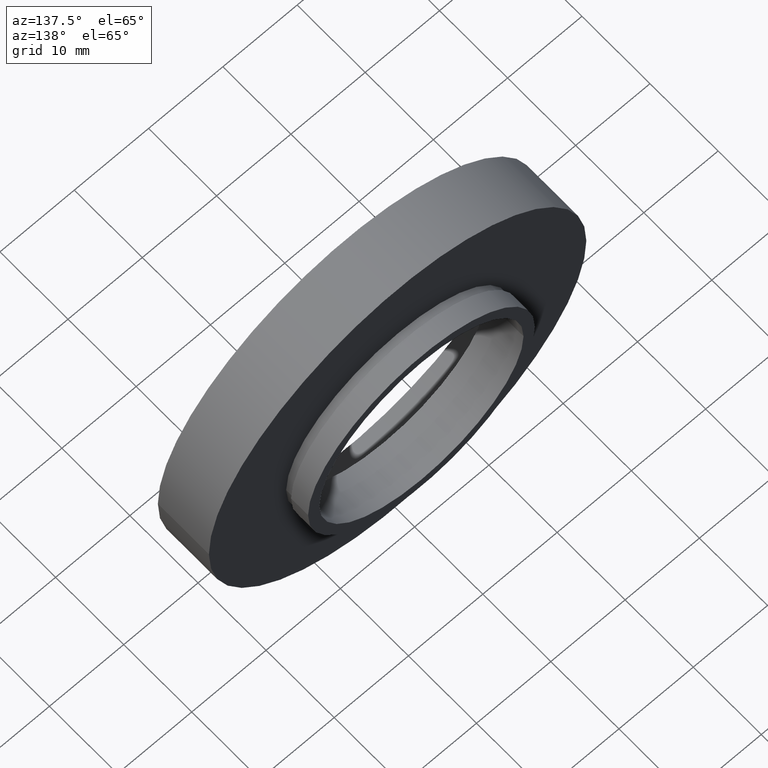
[diagram: clean part render]
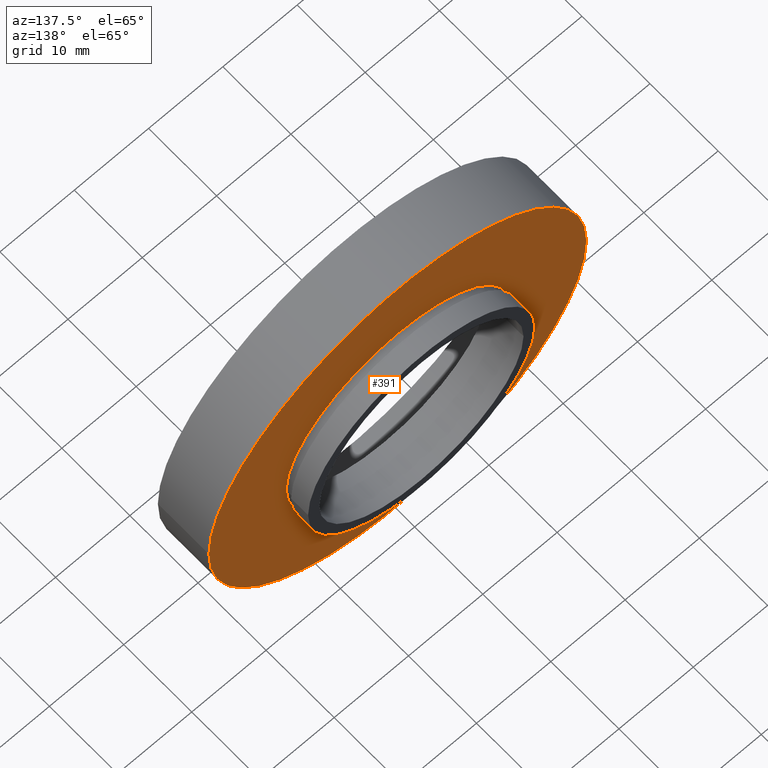
[diagram: same view with one face highlighted and labeled with its STEP entity id]
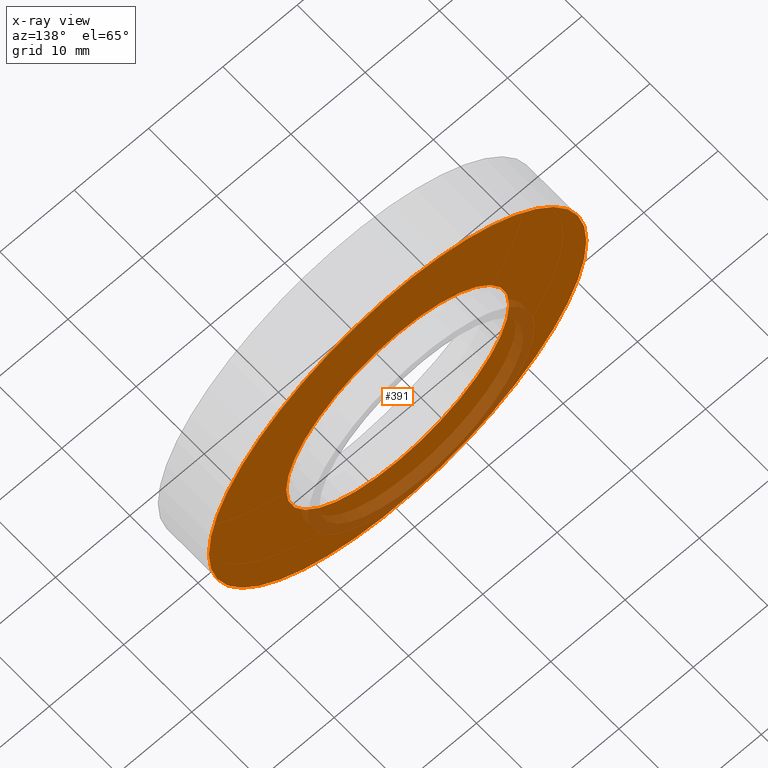
[diagram: x-ray of the same camera — body ghosted, the highlighted face saturated]
A machine part, auxiliary view. The second image highlights one B-rep face of the part: STEP entity #391.
The next image is the same camera in x-ray: the body ghosted, the highlighted face saturated — about 15% of this face is hidden behind the body in this view.
In plain terms, the highlighted planar face has unit normal (0, -1, 0).
Its self-contained STEP definition (entity closure, byte-faithful):
#2 = FACE_BOUND ( 'NONE', #107, .T. ) ;
#5 = VERTEX_POINT ( 'NONE', #575 ) ;
#6 = VERTEX_POINT ( 'NONE', #49 ) ;
#49 = CARTESIAN_POINT ( 'NONE',  ( 15.00000000000000200, 7.500000000000000000, 1.836970198721029600E-015 ) ) ;
#81 = CARTESIAN_POINT ( 'NONE',  ( 1.149455719078122700E-015, 7.499999999999998200, 0.0000000000000000000 ) ) ;
#98 = AXIS2_PLACEMENT_3D ( 'NONE', #213, #588, #307 ) ;
#107 = EDGE_LOOP ( 'NONE', ( #427, #573 ) ) ;
#122 = CARTESIAN_POINT ( 'NONE',  ( -14.99999999999999800, 7.499999999999996400, 0.0000000000000000000 ) ) ;
#124 = DIRECTION ( 'NONE',  ( 1.000000000000000000, 1.224646799147351000E-016, 0.0000000000000000000 ) ) ;
#162 = CARTESIAN_POINT ( 'NONE',  ( 25.39999999999999900, 7.500000000000000000, 3.110602869834276900E-015 ) ) ;
#211 = CIRCLE ( 'NONE', #293, 15.00000000000000000 ) ;
#213 = CARTESIAN_POINT ( 'NONE',  ( 1.149455719078123100E-015, 7.499999999999996400, 0.0000000000000000000 ) ) ;
#252 = EDGE_CURVE ( 'NONE', #5, #491, #374, .T. ) ;
#267 = CARTESIAN_POINT ( 'NONE',  ( 15.00000000000000200, 7.499999999999999100, 0.0000000000000000000 ) ) ;
#293 = AXIS2_PLACEMENT_3D ( 'NONE', #81, #549, #599 ) ;
#307 = DIRECTION ( 'NONE',  ( -1.000000000000000000, -1.365923996832131600E-016, 0.0000000000000000000 ) ) ;
#313 = DIRECTION ( 'NONE',  ( 1.224646799147351000E-016, -1.000000000000000000, 0.0000000000000000000 ) ) ;
#374 = CIRCLE ( 'NONE', #563, 25.39999999999999900 ) ;
#386 = EDGE_CURVE ( 'NONE', #403, #6, #211, .T. ) ;
#391 = ADVANCED_FACE ( 'NONE', ( #2, #602 ), #418, .F. ) ;
#393 = EDGE_LOOP ( 'NONE', ( #562, #416 ) ) ;
#395 = CARTESIAN_POINT ( 'NONE',  ( 1.149455719078123100E-015, 7.499999999999996400, 0.0000000000000000000 ) ) ;
#400 = AXIS2_PLACEMENT_3D ( 'NONE', #267, #313, #124 ) ;
#403 = VERTEX_POINT ( 'NONE', #122 ) ;
#406 = DIRECTION ( 'NONE',  ( -1.000000000000000000, -1.365923996832131600E-016, 0.0000000000000000000 ) ) ;
#416 = ORIENTED_EDGE ( 'NONE', *, *, #601, .T. ) ;
#418 = PLANE ( 'NONE',  #400 ) ;
#421 = CARTESIAN_POINT ( 'NONE',  ( 1.149455719078122700E-015, 7.499999999999998200, 0.0000000000000000000 ) ) ;
#427 = ORIENTED_EDGE ( 'NONE', *, *, #386, .F. ) ;
#436 = AXIS2_PLACEMENT_3D ( 'NONE', #421, #542, #593 ) ;
#440 = CIRCLE ( 'NONE', #98, 25.39999999999999900 ) ;
#471 = EDGE_CURVE ( 'NONE', #6, #403, #565, .T. ) ;
#487 = DIRECTION ( 'NONE',  ( -1.224646799147351000E-016, 1.000000000000000000, -0.0000000000000000000 ) ) ;
#491 = VERTEX_POINT ( 'NONE', #162 ) ;
#542 = DIRECTION ( 'NONE',  ( -1.224646799147351000E-016, 1.000000000000000000, -0.0000000000000000000 ) ) ;
#549 = DIRECTION ( 'NONE',  ( -1.224646799147351000E-016, 1.000000000000000000, -0.0000000000000000000 ) ) ;
#562 = ORIENTED_EDGE ( 'NONE', *, *, #252, .T. ) ;
#563 = AXIS2_PLACEMENT_3D ( 'NONE', #395, #487, #406 ) ;
#565 = CIRCLE ( 'NONE', #436, 15.00000000000000000 ) ;
#573 = ORIENTED_EDGE ( 'NONE', *, *, #471, .F. ) ;
#575 = CARTESIAN_POINT ( 'NONE',  ( -25.39999999999999900, 7.499999999999992900, 0.0000000000000000000 ) ) ;
#588 = DIRECTION ( 'NONE',  ( -1.224646799147351000E-016, 1.000000000000000000, -0.0000000000000000000 ) ) ;
#593 = DIRECTION ( 'NONE',  ( -1.000000000000000000, -1.156482317317871500E-016, 0.0000000000000000000 ) ) ;
#599 = DIRECTION ( 'NONE',  ( -1.000000000000000000, -1.156482317317871500E-016, 0.0000000000000000000 ) ) ;
#601 = EDGE_CURVE ( 'NONE', #491, #5, #440, .T. ) ;
#602 = FACE_OUTER_BOUND ( 'NONE', #393, .T. ) ;